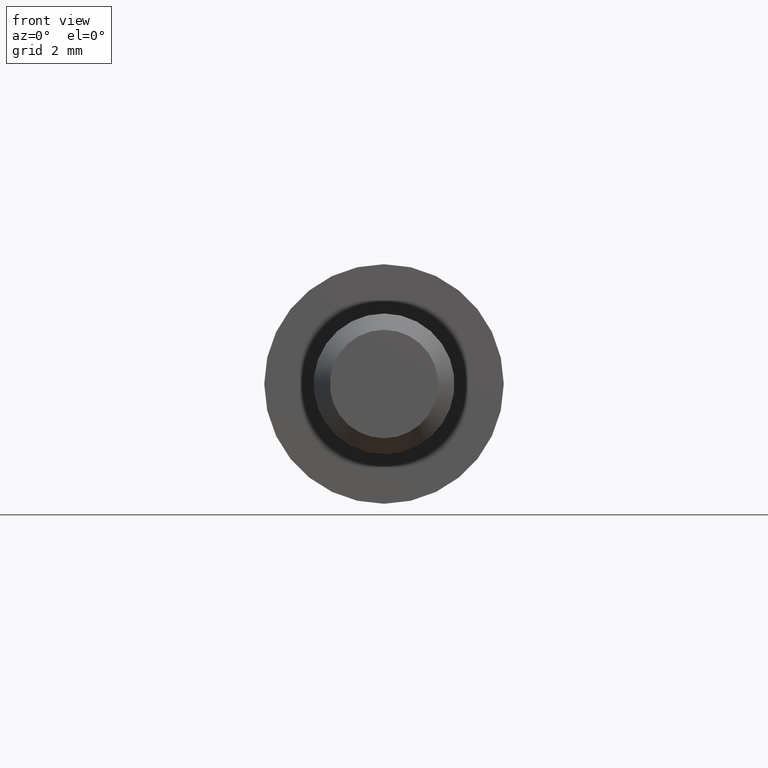
[diagram: clean part render]
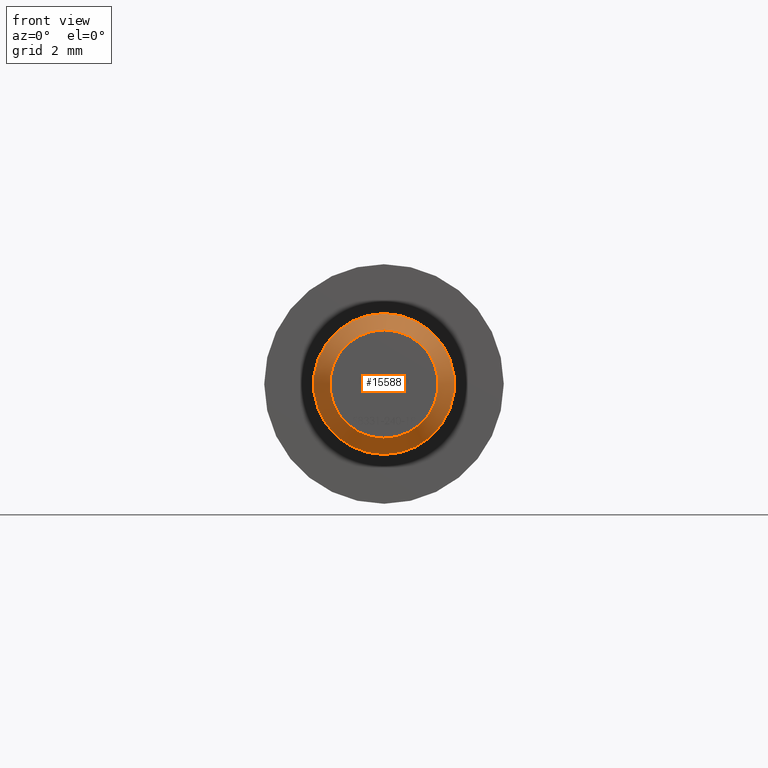
[diagram: same view with one face highlighted and labeled with its STEP entity id]
A machine part, front view. The second image highlights one B-rep face of the part: STEP entity #15588.
In plain terms, the highlighted conical surface has half-angle 30 deg.
Its self-contained STEP definition (entity closure, byte-faithful):
#83 = VERTEX_POINT ( 'NONE', #5458 ) ;
#2529 = DIRECTION ( 'NONE',  ( 0.0000000000000000000, 1.000000000000000000, 0.0000000000000000000 ) ) ;
#3021 = CONICAL_SURFACE ( 'NONE', #14692, 1.922649730810374300, 0.5235987755982970400 ) ;
#3676 = CARTESIAN_POINT ( 'NONE',  ( 0.0000000000000000000, -18.00000000000000000, 0.0000000000000000000 ) ) ;
#3965 = AXIS2_PLACEMENT_3D ( 'NONE', #3676, #11214, #4930 ) ;
#4466 = DIRECTION ( 'NONE',  ( 0.0000000000000000000, 0.0000000000000000000, -1.000000000000000000 ) ) ;
#4930 = DIRECTION ( 'NONE',  ( 0.0000000000000000000, 0.0000000000000000000, -1.000000000000000000 ) ) ;
#5458 = CARTESIAN_POINT ( 'NONE',  ( 0.0000000000000000000, -16.99999999999999300, -2.500000000000000000 ) ) ;
#5598 = CIRCLE ( 'NONE', #8152, 2.500000000000000000 ) ;
#5844 = CIRCLE ( 'NONE', #3965, 1.922649730810374300 ) ;
#6333 = VERTEX_POINT ( 'NONE', #8923 ) ;
#6415 = CARTESIAN_POINT ( 'NONE',  ( 0.0000000000000000000, -18.00000000000000000, 0.0000000000000000000 ) ) ;
#7142 = FACE_BOUND ( 'NONE', #11861, .T. ) ;
#7294 = EDGE_CURVE ( 'NONE', #83, #83, #5598, .T. ) ;
#7411 = EDGE_CURVE ( 'NONE', #6333, #6333, #5844, .T. ) ;
#8152 = AXIS2_PLACEMENT_3D ( 'NONE', #15619, #14307, #4466 ) ;
#8247 = ORIENTED_EDGE ( 'NONE', *, *, #7411, .F. ) ;
#8923 = CARTESIAN_POINT ( 'NONE',  ( 0.0000000000000000000, -18.00000000000000000, -1.922649730810374300 ) ) ;
#9391 = ORIENTED_EDGE ( 'NONE', *, *, #7294, .F. ) ;
#9657 = FACE_OUTER_BOUND ( 'NONE', #13234, .T. ) ;
#11214 = DIRECTION ( 'NONE',  ( 0.0000000000000000000, -1.000000000000000000, 0.0000000000000000000 ) ) ;
#11861 = EDGE_LOOP ( 'NONE', ( #8247 ) ) ;
#12512 = DIRECTION ( 'NONE',  ( 0.0000000000000000000, 0.0000000000000000000, 1.000000000000000000 ) ) ;
#13234 = EDGE_LOOP ( 'NONE', ( #9391 ) ) ;
#14307 = DIRECTION ( 'NONE',  ( 0.0000000000000000000, 1.000000000000000000, 0.0000000000000000000 ) ) ;
#14692 = AXIS2_PLACEMENT_3D ( 'NONE', #6415, #2529, #12512 ) ;
#15588 = ADVANCED_FACE ( 'NONE', ( #9657, #7142 ), #3021, .T. ) ;
#15619 = CARTESIAN_POINT ( 'NONE',  ( 0.0000000000000000000, -16.99999999999999300, 0.0000000000000000000 ) ) ;